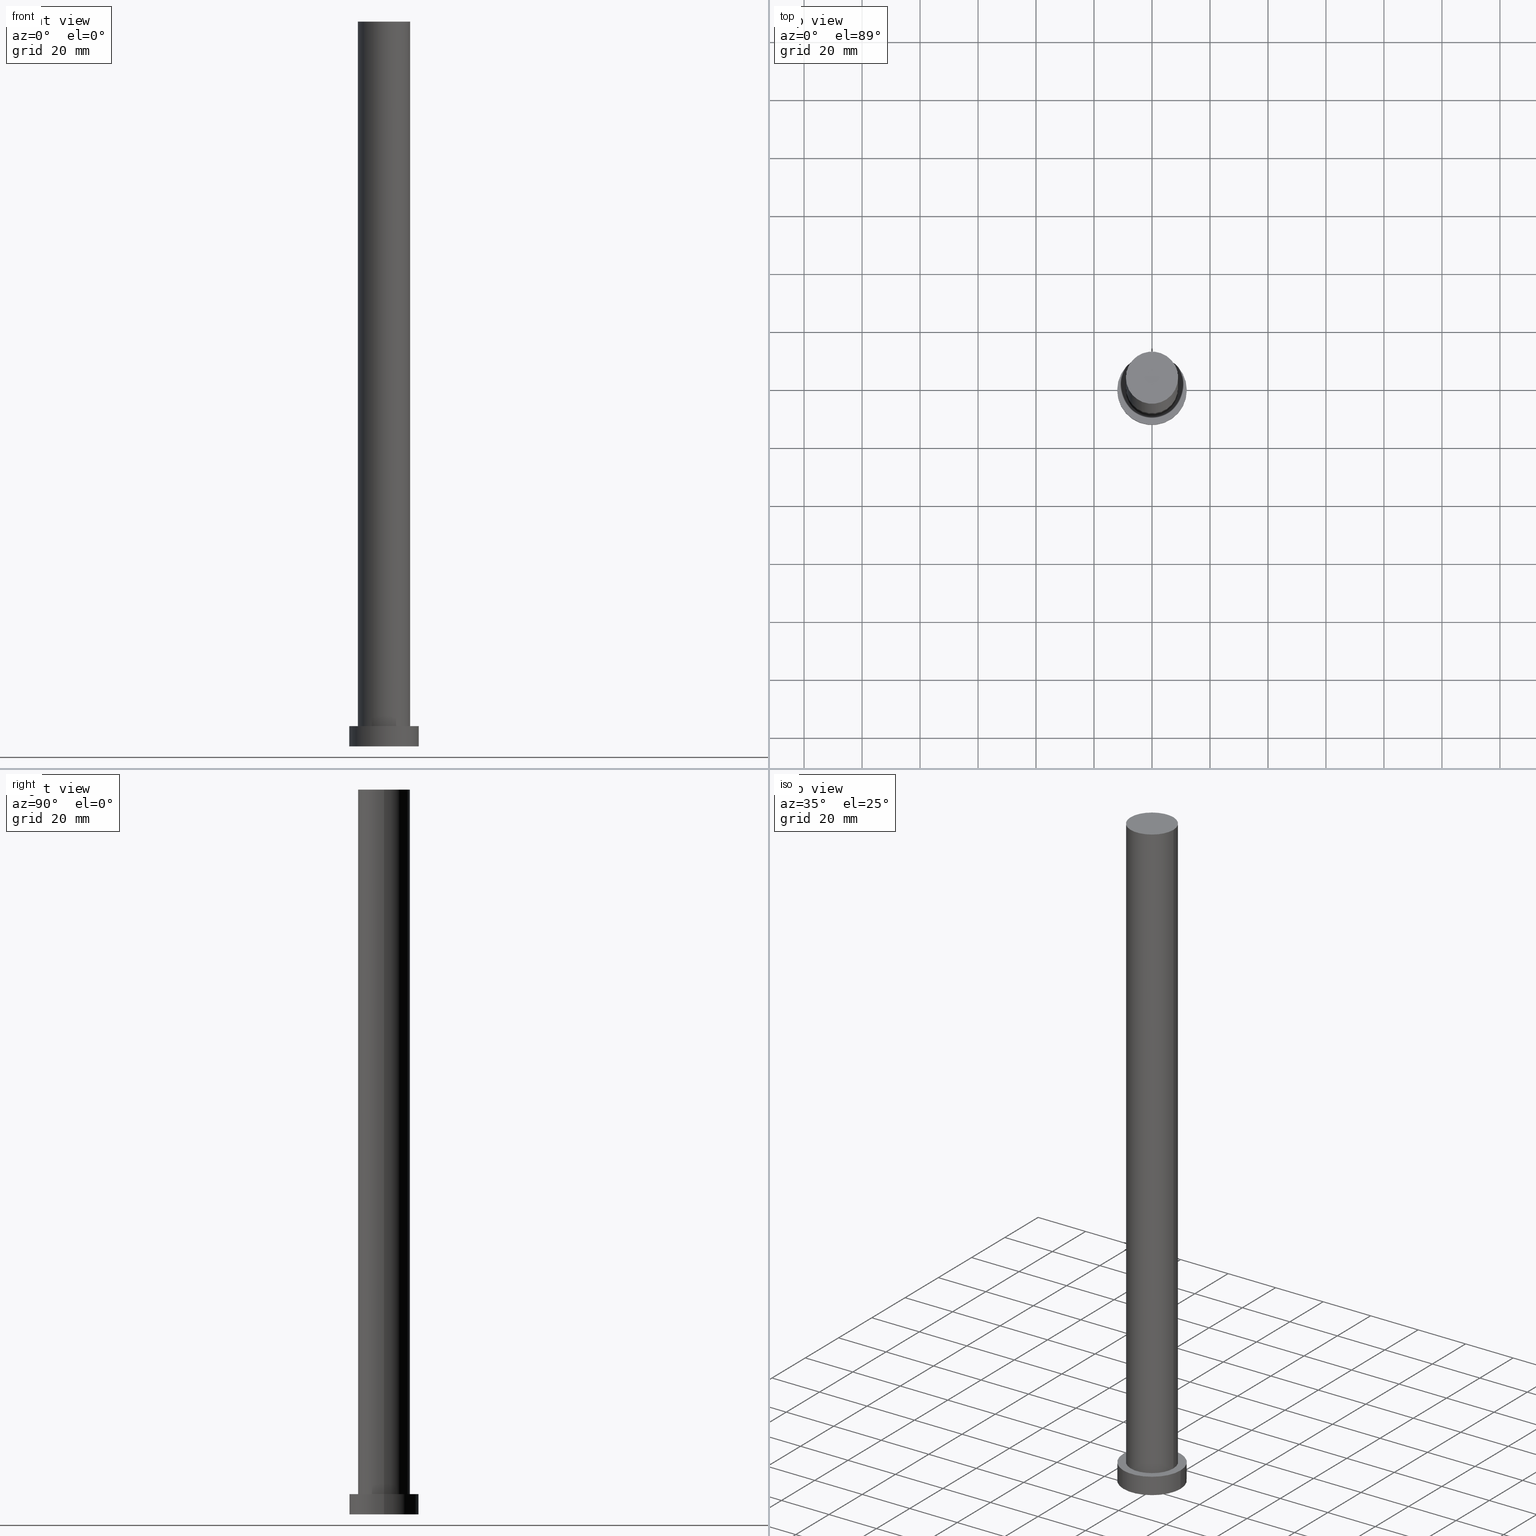
[diagram: canonical four-view strip — front | top / right | iso, engineering-drawing reading convention]
A machine part, canonical four-view strip (front | top / right | iso — engineering-drawing reading convention). The complete STEP part file that produces these views, byte-faithful:
ISO-10303-21;
HEADER;
FILE_DESCRIPTION (( 'STEP AP203' ),
    '1' );
FILE_NAME ('c497.STEP',
    '2023-02-12T10:37:52',
    ( '' ),
    ( '' ),
    'SwSTEP 2.0',
    'SolidWorks 2019',
    '' );
FILE_SCHEMA (( 'CONFIG_CONTROL_DESIGN' ));
ENDSEC;

DATA;
#1 = DIRECTION ( 'NONE',  ( 0.000000000000000000, 0.000000000000000000, 1.000000000000000000 ) ) ;
#2 = AXIS2_PLACEMENT_3D ( 'NONE', #241, #100, #182 ) ;
#3 = CALENDAR_DATE ( 2023, 12, 2 ) ;
#4 = EDGE_CURVE ( 'NONE', #109, #25, #112, .T. ) ;
#5 = VECTOR ( 'NONE', #62, 1000.000000000000000 ) ;
#6 = ADVANCED_FACE ( 'NONE', ( #203, #23 ), #41, .T. ) ;
#7 = CC_DESIGN_APPROVAL ( #64, ( #254 ) ) ;
#8 = ORIENTED_EDGE ( 'NONE', *, *, #99, .F. ) ;
#9 = EDGE_LOOP ( 'NONE', ( #8, #246, #138, #201 ) ) ;
#10 = SECURITY_CLASSIFICATION_LEVEL ( 'unclassified' ) ;
#11 = CC_DESIGN_DATE_AND_TIME_ASSIGNMENT ( #38, #79, ( #169 ) ) ;
#12 = CARTESIAN_POINT ( 'NONE',  ( 12.00000000000000178, 1.469576158976824144E-15, 0.000000000000000000 ) ) ;
#13 = APPROVAL_PERSON_ORGANIZATION ( #240, #125, #37 ) ;
#14 = LINE ( 'NONE', #247, #83 ) ;
#15 = DIRECTION ( 'NONE',  ( -0.000000000000000000, -0.000000000000000000, -1.000000000000000000 ) ) ;
#16 = PLANE ( 'NONE',  #171 ) ;
#17 = EDGE_CURVE ( 'NONE', #226, #86, #181, .T. ) ;
#18 = DIRECTION ( 'NONE',  ( 0.000000000000000000, 0.000000000000000000, 1.000000000000000000 ) ) ;
#19 = APPROVAL_STATUS ( 'not_yet_approved' ) ;
#20 = VERTEX_POINT ( 'NONE', #59 ) ;
#21 = EDGE_CURVE ( 'NONE', #187, #25, #207, .T. ) ;
#22 = AXIS2_PLACEMENT_3D ( 'NONE', #186, #149, #170 ) ;
#23 = FACE_OUTER_BOUND ( 'NONE', #126, .T. ) ;
#24 = ORIENTED_EDGE ( 'NONE', *, *, #237, .T. ) ;
#25 = VERTEX_POINT ( 'NONE', #71 ) ;
#26 = CARTESIAN_POINT ( 'NONE',  ( 0.000000000000000000, 0.000000000000000000, 7.000000000000000000 ) ) ;
#27 = ORIENTED_EDGE ( 'NONE', *, *, #17, .T. ) ;
#28 = CARTESIAN_POINT ( 'NONE',  ( 9.000000000000001776, 1.102182119232617911E-15, 250.0000000000000000 ) ) ;
#29 = ORIENTED_EDGE ( 'NONE', *, *, #4, .F. ) ;
#30 = CARTESIAN_POINT ( 'NONE',  ( 0.000000000000000000, 0.000000000000000000, 250.0000000000000000 ) ) ;
#31 = CARTESIAN_POINT ( 'NONE',  ( -12.00000000000000178, 0.000000000000000000, 7.000000000000000000 ) ) ;
#32 = APPLICATION_CONTEXT ( 'configuration controlled 3d designs of mechanical parts and assemblies' ) ;
#33 = CARTESIAN_POINT ( 'NONE',  ( 0.000000000000000000, 0.000000000000000000, 250.0000000000000000 ) ) ;
#34 = CIRCLE ( 'NONE', #77, 9.000000000000001776 ) ;
#35 = DIRECTION ( 'NONE',  ( -0.000000000000000000, -0.000000000000000000, -1.000000000000000000 ) ) ;
#36 = APPLICATION_PROTOCOL_DEFINITION ( 'international standard', 'config_control_design', 1994, #218 ) ;
#37 = APPROVAL_ROLE ( '' ) ;
#38 = DATE_AND_TIME ( #3, #198 ) ;
#39 = LOCAL_TIME ( 11, 37, 52.00000000000000000, #85 ) ;
#40 = CC_DESIGN_DATE_AND_TIME_ASSIGNMENT ( #42, #119, ( #254 ) ) ;
#41 = PLANE ( 'NONE',  #142 ) ;
#42 = DATE_AND_TIME ( #69, #255 ) ;
#43 = DATE_AND_TIME ( #227, #154 ) ;
#44 = ORIENTED_EDGE ( 'NONE', *, *, #136, .T. ) ;
#45 = CARTESIAN_POINT ( 'NONE',  ( 12.00000000000000178, 1.469576158976824144E-15, 7.000000000000000000 ) ) ;
#46 = FACE_OUTER_BOUND ( 'NONE', #9, .T. ) ;
#47 = DIRECTION ( 'NONE',  ( 1.000000000000000000, 0.000000000000000000, 0.000000000000000000 ) ) ;
#48 = EDGE_LOOP ( 'NONE', ( #123, #242 ) ) ;
#49 = CARTESIAN_POINT ( 'NONE',  ( 0.000000000000000000, 0.000000000000000000, 0.000000000000000000 ) ) ;
#50 = APPROVAL_DATE_TIME ( #235, #64 ) ;
#51 = CIRCLE ( 'NONE', #22, 12.00000000000000178 ) ;
#52 = EDGE_CURVE ( 'NONE', #226, #20, #14, .T. ) ;
#53 = DIRECTION ( 'NONE',  ( 0.000000000000000000, 0.000000000000000000, 1.000000000000000000 ) ) ;
#54 =( LENGTH_UNIT ( ) NAMED_UNIT ( * ) SI_UNIT ( .MILLI., .METRE. ) );
#55 = AXIS2_PLACEMENT_3D ( 'NONE', #116, #1, #253 ) ;
#56 = EDGE_CURVE ( 'NONE', #86, #226, #217, .T. ) ;
#57 = DIRECTION ( 'NONE',  ( 0.000000000000000000, 0.000000000000000000, 1.000000000000000000 ) ) ;
#58 = COORDINATED_UNIVERSAL_TIME_OFFSET ( 1, 0, .AHEAD. ) ;
#59 = CARTESIAN_POINT ( 'NONE',  ( -12.00000000000000178, 0.000000000000000000, 0.000000000000000000 ) ) ;
#60 = DIRECTION ( 'NONE',  ( 1.000000000000000000, 0.000000000000000000, 0.000000000000000000 ) ) ;
#61 = PERSON_AND_ORGANIZATION ( #239, #73 ) ;
#62 = DIRECTION ( 'NONE',  ( -0.000000000000000000, -0.000000000000000000, -1.000000000000000000 ) ) ;
#63 = VECTOR ( 'NONE', #189, 1000.000000000000000 ) ;
#64 = APPROVAL ( #204, 'NEUR�EN�' ) ;
#65 = CARTESIAN_POINT ( 'NONE',  ( 0.000000000000000000, 0.000000000000000000, 250.0000000000000000 ) ) ;
#66 = ORIENTED_EDGE ( 'NONE', *, *, #221, .T. ) ;
#67 = CYLINDRICAL_SURFACE ( 'NONE', #248, 12.00000000000000178 ) ;
#68 = ORIENTED_EDGE ( 'NONE', *, *, #56, .T. ) ;
#69 = CALENDAR_DATE ( 2023, 12, 2 ) ;
#70 = PERSON_AND_ORGANIZATION_ROLE ( 'classification_officer' ) ;
#71 = CARTESIAN_POINT ( 'NONE',  ( -9.000000000000001776, 0.000000000000000000, 7.000000000000000000 ) ) ;
#72 = DIRECTION ( 'NONE',  ( -0.000000000000000000, -0.000000000000000000, -1.000000000000000000 ) ) ;
#73 = ORGANIZATION ( 'NEUR�EN�', 'NEUR�EN�', '' ) ;
#74 =( NAMED_UNIT ( * ) PLANE_ANGLE_UNIT ( ) SI_UNIT ( $, .RADIAN. ) );
#75 = CARTESIAN_POINT ( 'NONE',  ( 9.000000000000001776, 1.102182119232617911E-15, 250.0000000000000000 ) ) ;
#76 = CC_DESIGN_PERSON_AND_ORGANIZATION_ASSIGNMENT ( #159, #134, ( #223 ) ) ;
#77 = AXIS2_PLACEMENT_3D ( 'NONE', #26, #110, #47 ) ;
#78 = APPLICATION_PROTOCOL_DEFINITION ( 'international standard', 'config_control_design', 1994, #32 ) ;
#79 = DATE_TIME_ROLE ( 'creation_date' ) ;
#80 = CC_DESIGN_APPROVAL ( #193, ( #169 ) ) ;
#81 = CARTESIAN_POINT ( 'NONE',  ( 0.000000000000000000, 0.000000000000000000, 7.000000000000000000 ) ) ;
#82 = CC_DESIGN_PERSON_AND_ORGANIZATION_ASSIGNMENT ( #97, #180, ( #169 ) ) ;
#83 = VECTOR ( 'NONE', #211, 1000.000000000000000 ) ;
#84 = DIRECTION ( 'NONE',  ( 0.000000000000000000, 0.000000000000000000, 1.000000000000000000 ) ) ;
#85 = COORDINATED_UNIVERSAL_TIME_OFFSET ( 1, 0, .AHEAD. ) ;
#86 = VERTEX_POINT ( 'NONE', #45 ) ;
#87 = CARTESIAN_POINT ( 'NONE',  ( 0.000000000000000000, 0.000000000000000000, 7.000000000000000000 ) ) ;
#88 = CIRCLE ( 'NONE', #238, 9.000000000000001776 ) ;
#89 = DIRECTION ( 'NONE',  ( 1.000000000000000000, 0.000000000000000000, 0.000000000000000000 ) ) ;
#90 = CIRCLE ( 'NONE', #143, 9.000000000000001776 ) ;
#91 = CARTESIAN_POINT ( 'NONE',  ( 0.000000000000000000, 0.000000000000000000, 7.000000000000000000 ) ) ;
#92 = DIRECTION ( 'NONE',  ( -0.000000000000000000, -0.000000000000000000, -1.000000000000000000 ) ) ;
#93 = DIRECTION ( 'NONE',  ( 1.000000000000000000, 0.000000000000000000, 0.000000000000000000 ) ) ;
#94 = CC_DESIGN_SECURITY_CLASSIFICATION ( #254, ( #115 ) ) ;
#95 =( NAMED_UNIT ( * ) SI_UNIT ( $, .STERADIAN. ) SOLID_ANGLE_UNIT ( ) );
#96 = ADVANCED_FACE ( 'NONE', ( #165 ), #67, .T. ) ;
#97 = PERSON_AND_ORGANIZATION ( #239, #73 ) ;
#98 = ORIENTED_EDGE ( 'NONE', *, *, #52, .F. ) ;
#99 = EDGE_CURVE ( 'NONE', #86, #191, #163, .T. ) ;
#100 = DIRECTION ( 'NONE',  ( 0.000000000000000000, 0.000000000000000000, 1.000000000000000000 ) ) ;
#101 = ORIENTED_EDGE ( 'NONE', *, *, #183, .T. ) ;
#102 = ORIENTED_EDGE ( 'NONE', *, *, #4, .T. ) ;
#103 = PERSON_AND_ORGANIZATION ( #239, #73 ) ;
#104 = DIRECTION ( 'NONE',  ( -1.000000000000000000, 0.000000000000000000, 0.000000000000000000 ) ) ;
#105 = DATE_AND_TIME ( #162, #39 ) ;
#106 = CARTESIAN_POINT ( 'NONE',  ( -9.000000000000001776, 0.000000000000000000, 250.0000000000000000 ) ) ;
#107 = AXIS2_PLACEMENT_3D ( 'NONE', #244, #57, #60 ) ;
#108 = CC_DESIGN_PERSON_AND_ORGANIZATION_ASSIGNMENT ( #168, #70, ( #254 ) ) ;
#109 = VERTEX_POINT ( 'NONE', #145 ) ;
#110 = DIRECTION ( 'NONE',  ( 0.000000000000000000, 0.000000000000000000, 1.000000000000000000 ) ) ;
#111 = FACE_OUTER_BOUND ( 'NONE', #48, .T. ) ;
#112 = CIRCLE ( 'NONE', #2, 9.000000000000001776 ) ;
#113 = CC_DESIGN_PERSON_AND_ORGANIZATION_ASSIGNMENT ( #185, #188, ( #115 ) ) ;
#114 = DIRECTION ( 'NONE',  ( 0.000000000000000000, 0.000000000000000000, 1.000000000000000000 ) ) ;
#115 = PRODUCT_DEFINITION_FORMATION_WITH_SPECIFIED_SOURCE ( 'LIBOVOLN�', '', #223, .NOT_KNOWN. ) ;
#116 = CARTESIAN_POINT ( 'NONE',  ( 0.000000000000000000, 0.000000000000000000, 0.000000000000000000 ) ) ;
#117 = ADVANCED_FACE ( 'NONE', ( #122 ), #233, .T. ) ;
#118 = APPROVAL_PERSON_ORGANIZATION ( #200, #193, #202 ) ;
#119 = DATE_TIME_ROLE ( 'classification_date' ) ;
#120 = APPROVAL_DATE_TIME ( #43, #193 ) ;
#121 = EDGE_CURVE ( 'NONE', #20, #191, #148, .T. ) ;
#122 = FACE_OUTER_BOUND ( 'NONE', #230, .T. ) ;
#123 = ORIENTED_EDGE ( 'NONE', *, *, #121, .F. ) ;
#124 = EDGE_LOOP ( 'NONE', ( #66, #44 ) ) ;
#125 = APPROVAL ( #135, 'NEUR�EN�' ) ;
#126 = EDGE_LOOP ( 'NONE', ( #27, #68 ) ) ;
#127 = DIRECTION ( 'NONE',  ( 0.000000000000000000, 0.000000000000000000, 1.000000000000000000 ) ) ;
#128 = DIRECTION ( 'NONE',  ( -1.000000000000000000, 0.000000000000000000, 0.000000000000000000 ) ) ;
#129 = CC_DESIGN_PERSON_AND_ORGANIZATION_ASSIGNMENT ( #61, #140, ( #115 ) ) ;
#130 = AXIS2_PLACEMENT_3D ( 'NONE', #49, #232, #195 ) ;
#131 = VECTOR ( 'NONE', #35, 1000.000000000000000 ) ;
#132 = ADVANCED_BREP_SHAPE_REPRESENTATION ( 'c497', ( #210, #55 ), #222 ) ;
#133 = DIRECTION ( 'NONE',  ( 1.000000000000000000, 0.000000000000000000, -0.000000000000000000 ) ) ;
#134 = PERSON_AND_ORGANIZATION_ROLE ( 'design_owner' ) ;
#135 = APPROVAL_STATUS ( 'not_yet_approved' ) ;
#136 = EDGE_CURVE ( 'NONE', #184, #187, #88, .T. ) ;
#137 = CC_DESIGN_APPROVAL ( #125, ( #115 ) ) ;
#138 = ORIENTED_EDGE ( 'NONE', *, *, #52, .T. ) ;
#139 = ORIENTED_EDGE ( 'NONE', *, *, #21, .F. ) ;
#140 = PERSON_AND_ORGANIZATION_ROLE ( 'creator' ) ;
#141 = ORIENTED_EDGE ( 'NONE', *, *, #136, .F. ) ;
#142 = AXIS2_PLACEMENT_3D ( 'NONE', #81, #84, #160 ) ;
#143 = AXIS2_PLACEMENT_3D ( 'NONE', #33, #18, #93 ) ;
#144 = ORIENTED_EDGE ( 'NONE', *, *, #99, .T. ) ;
#145 = CARTESIAN_POINT ( 'NONE',  ( 9.000000000000001776, 1.102182119232617911E-15, 7.000000000000000000 ) ) ;
#146 = COORDINATED_UNIVERSAL_TIME_OFFSET ( 1, 0, .AHEAD. ) ;
#147 = CARTESIAN_POINT ( 'NONE',  ( -9.000000000000001776, 0.000000000000000000, 250.0000000000000000 ) ) ;
#148 = CIRCLE ( 'NONE', #130, 12.00000000000000178 ) ;
#149 = DIRECTION ( 'NONE',  ( 0.000000000000000000, 0.000000000000000000, 1.000000000000000000 ) ) ;
#150 = CALENDAR_DATE ( 2023, 12, 2 ) ;
#151 = LINE ( 'NONE', #75, #131 ) ;
#152 = PLANE ( 'NONE',  #178 ) ;
#153 = APPROVAL_ROLE ( '' ) ;
#154 = LOCAL_TIME ( 11, 37, 52.00000000000000000, #243 ) ;
#155 = PRODUCT_DEFINITION_SHAPE ( 'NONE', 'NONE',  #169 ) ;
#156 = MECHANICAL_CONTEXT ( 'NONE', #32, 'mechanical' ) ;
#157 = EDGE_CURVE ( 'NONE', #25, #109, #34, .T. ) ;
#158 = AXIS2_PLACEMENT_3D ( 'NONE', #30, #15, #128 ) ;
#159 = PERSON_AND_ORGANIZATION ( #239, #73 ) ;
#160 = DIRECTION ( 'NONE',  ( 1.000000000000000000, 0.000000000000000000, -0.000000000000000000 ) ) ;
#161 = ORIENTED_EDGE ( 'NONE', *, *, #237, .F. ) ;
#162 = CALENDAR_DATE ( 2023, 12, 2 ) ;
#163 = LINE ( 'NONE', #245, #5 ) ;
#164 = ORIENTED_EDGE ( 'NONE', *, *, #56, .F. ) ;
#165 = FACE_OUTER_BOUND ( 'NONE', #166, .T. ) ;
#166 = EDGE_LOOP ( 'NONE', ( #164, #144, #101, #98 ) ) ;
#167 = AXIS2_PLACEMENT_3D ( 'NONE', #208, #251, #236 ) ;
#168 = PERSON_AND_ORGANIZATION ( #239, #73 ) ;
#169 = PRODUCT_DEFINITION ( 'NEZN�M�', '', #115, #214 ) ;
#170 = DIRECTION ( 'NONE',  ( 1.000000000000000000, 0.000000000000000000, 0.000000000000000000 ) ) ;
#171 = AXIS2_PLACEMENT_3D ( 'NONE', #196, #216, #133 ) ;
#172 = DIRECTION ( 'NONE',  ( -1.000000000000000000, 0.000000000000000000, 0.000000000000000000 ) ) ;
#173 = CYLINDRICAL_SURFACE ( 'NONE', #206, 12.00000000000000178 ) ;
#174 = ADVANCED_FACE ( 'NONE', ( #215 ), #192, .T. ) ;
#175 = COORDINATED_UNIVERSAL_TIME_OFFSET ( 1, 0, .AHEAD. ) ;
#176 = CARTESIAN_POINT ( 'NONE',  ( 0.000000000000000000, 0.000000000000000000, 250.0000000000000000 ) ) ;
#177 = AXIS2_PLACEMENT_3D ( 'NONE', #91, #53, #213 ) ;
#178 = AXIS2_PLACEMENT_3D ( 'NONE', #176, #114, #220 ) ;
#179 = ADVANCED_FACE ( 'NONE', ( #46 ), #173, .T. ) ;
#180 = PERSON_AND_ORGANIZATION_ROLE ( 'creator' ) ;
#181 = CIRCLE ( 'NONE', #107, 12.00000000000000178 ) ;
#182 = DIRECTION ( 'NONE',  ( 1.000000000000000000, 0.000000000000000000, 0.000000000000000000 ) ) ;
#183 = EDGE_CURVE ( 'NONE', #191, #20, #51, .T. ) ;
#184 = VERTEX_POINT ( 'NONE', #28 ) ;
#185 = PERSON_AND_ORGANIZATION ( #239, #73 ) ;
#186 = CARTESIAN_POINT ( 'NONE',  ( 0.000000000000000000, 0.000000000000000000, 0.000000000000000000 ) ) ;
#187 = VERTEX_POINT ( 'NONE', #106 ) ;
#188 = PERSON_AND_ORGANIZATION_ROLE ( 'design_supplier' ) ;
#189 = DIRECTION ( 'NONE',  ( -0.000000000000000000, -0.000000000000000000, -1.000000000000000000 ) ) ;
#190 = APPROVAL_PERSON_ORGANIZATION ( #103, #64, #153 ) ;
#191 = VERTEX_POINT ( 'NONE', #12 ) ;
#192 = CYLINDRICAL_SURFACE ( 'NONE', #158, 9.000000000000001776 ) ;
#193 = APPROVAL ( #19, 'NEUR�EN�' ) ;
#194 = SHAPE_DEFINITION_REPRESENTATION ( #155, #132 ) ;
#195 = DIRECTION ( 'NONE',  ( 1.000000000000000000, 0.000000000000000000, 0.000000000000000000 ) ) ;
#196 = CARTESIAN_POINT ( 'NONE',  ( 0.000000000000000000, 0.000000000000000000, 0.000000000000000000 ) ) ;
#197 = LOCAL_TIME ( 11, 37, 52.00000000000000000, #175 ) ;
#198 = LOCAL_TIME ( 11, 37, 52.00000000000000000, #58 ) ;
#199 = FACE_OUTER_BOUND ( 'NONE', #124, .T. ) ;
#200 = PERSON_AND_ORGANIZATION ( #239, #73 ) ;
#201 = ORIENTED_EDGE ( 'NONE', *, *, #121, .T. ) ;
#202 = APPROVAL_ROLE ( '' ) ;
#203 = FACE_BOUND ( 'NONE', #205, .T. ) ;
#204 = APPROVAL_STATUS ( 'not_yet_approved' ) ;
#205 = EDGE_LOOP ( 'NONE', ( #209, #29 ) ) ;
#206 = AXIS2_PLACEMENT_3D ( 'NONE', #252, #72, #104 ) ;
#207 = LINE ( 'NONE', #147, #63 ) ;
#208 = CARTESIAN_POINT ( 'NONE',  ( 0.000000000000000000, 0.000000000000000000, 250.0000000000000000 ) ) ;
#209 = ORIENTED_EDGE ( 'NONE', *, *, #157, .F. ) ;
#210 = MANIFOLD_SOLID_BREP ( 'P�idat vysunut�m3', #234 ) ;
#211 = DIRECTION ( 'NONE',  ( -0.000000000000000000, -0.000000000000000000, -1.000000000000000000 ) ) ;
#212 = ORIENTED_EDGE ( 'NONE', *, *, #221, .F. ) ;
#213 = DIRECTION ( 'NONE',  ( 1.000000000000000000, 0.000000000000000000, 0.000000000000000000 ) ) ;
#214 = DESIGN_CONTEXT ( 'detailed design', #218, 'design' ) ;
#215 = FACE_OUTER_BOUND ( 'NONE', #225, .T. ) ;
#216 = DIRECTION ( 'NONE',  ( 0.000000000000000000, 0.000000000000000000, 1.000000000000000000 ) ) ;
#217 = CIRCLE ( 'NONE', #177, 12.00000000000000178 ) ;
#218 = APPLICATION_CONTEXT ( 'configuration controlled 3d designs of mechanical parts and assemblies' ) ;
#219 = ADVANCED_FACE ( 'NONE', ( #111 ), #16, .F. ) ;
#220 = DIRECTION ( 'NONE',  ( 1.000000000000000000, 0.000000000000000000, -0.000000000000000000 ) ) ;
#221 = EDGE_CURVE ( 'NONE', #187, #184, #90, .T. ) ;
#222 =( GEOMETRIC_REPRESENTATION_CONTEXT ( 3 ) GLOBAL_UNCERTAINTY_ASSIGNED_CONTEXT ( ( #224 ) ) GLOBAL_UNIT_ASSIGNED_CONTEXT ( ( #54, #74, #95 ) ) REPRESENTATION_CONTEXT ( 'NONE', 'WORKASPACE' ) );
#223 = PRODUCT ( 'c497', 'c497', '', ( #156 ) ) ;
#224 = UNCERTAINTY_MEASURE_WITH_UNIT (LENGTH_MEASURE( 1.000000000000000082E-05 ), #54, 'distance_accuracy_value', 'NONE');
#225 = EDGE_LOOP ( 'NONE', ( #161, #212, #228, #249 ) ) ;
#226 = VERTEX_POINT ( 'NONE', #31 ) ;
#227 = CALENDAR_DATE ( 2023, 12, 2 ) ;
#228 = ORIENTED_EDGE ( 'NONE', *, *, #21, .T. ) ;
#229 = ADVANCED_FACE ( 'NONE', ( #199 ), #152, .T. ) ;
#230 = EDGE_LOOP ( 'NONE', ( #141, #24, #102, #139 ) ) ;
#231 = APPROVAL_DATE_TIME ( #105, #125 ) ;
#232 = DIRECTION ( 'NONE',  ( 0.000000000000000000, 0.000000000000000000, 1.000000000000000000 ) ) ;
#233 = CYLINDRICAL_SURFACE ( 'NONE', #167, 9.000000000000001776 ) ;
#234 = CLOSED_SHELL ( 'NONE', ( #117, #96, #179, #6, #219, #174, #229 ) ) ;
#235 = DATE_AND_TIME ( #150, #197 ) ;
#236 = DIRECTION ( 'NONE',  ( -1.000000000000000000, 0.000000000000000000, 0.000000000000000000 ) ) ;
#237 = EDGE_CURVE ( 'NONE', #184, #109, #151, .T. ) ;
#238 = AXIS2_PLACEMENT_3D ( 'NONE', #65, #127, #89 ) ;
#239 = PERSON ( 'NEUR�EN�', 'NEUR�EN�', 'NEUR�EN�', ('NEUR�EN�'), ('NEUR�EN�'), ('NEUR�EN�') ) ;
#240 = PERSON_AND_ORGANIZATION ( #239, #73 ) ;
#241 = CARTESIAN_POINT ( 'NONE',  ( 0.000000000000000000, 0.000000000000000000, 7.000000000000000000 ) ) ;
#242 = ORIENTED_EDGE ( 'NONE', *, *, #183, .F. ) ;
#243 = COORDINATED_UNIVERSAL_TIME_OFFSET ( 1, 0, .AHEAD. ) ;
#244 = CARTESIAN_POINT ( 'NONE',  ( 0.000000000000000000, 0.000000000000000000, 7.000000000000000000 ) ) ;
#245 = CARTESIAN_POINT ( 'NONE',  ( 12.00000000000000178, 1.469576158976824144E-15, 7.000000000000000000 ) ) ;
#246 = ORIENTED_EDGE ( 'NONE', *, *, #17, .F. ) ;
#247 = CARTESIAN_POINT ( 'NONE',  ( -12.00000000000000178, 0.000000000000000000, 7.000000000000000000 ) ) ;
#248 = AXIS2_PLACEMENT_3D ( 'NONE', #87, #92, #172 ) ;
#249 = ORIENTED_EDGE ( 'NONE', *, *, #157, .T. ) ;
#250 = PRODUCT_RELATED_PRODUCT_CATEGORY ( 'detail', '', ( #223 ) ) ;
#251 = DIRECTION ( 'NONE',  ( -0.000000000000000000, -0.000000000000000000, -1.000000000000000000 ) ) ;
#252 = CARTESIAN_POINT ( 'NONE',  ( 0.000000000000000000, 0.000000000000000000, 7.000000000000000000 ) ) ;
#253 = DIRECTION ( 'NONE',  ( 1.000000000000000000, 0.000000000000000000, 0.000000000000000000 ) ) ;
#254 = SECURITY_CLASSIFICATION ( '', '', #10 ) ;
#255 = LOCAL_TIME ( 11, 37, 52.00000000000000000, #146 ) ;
ENDSEC;
END-ISO-10303-21;
